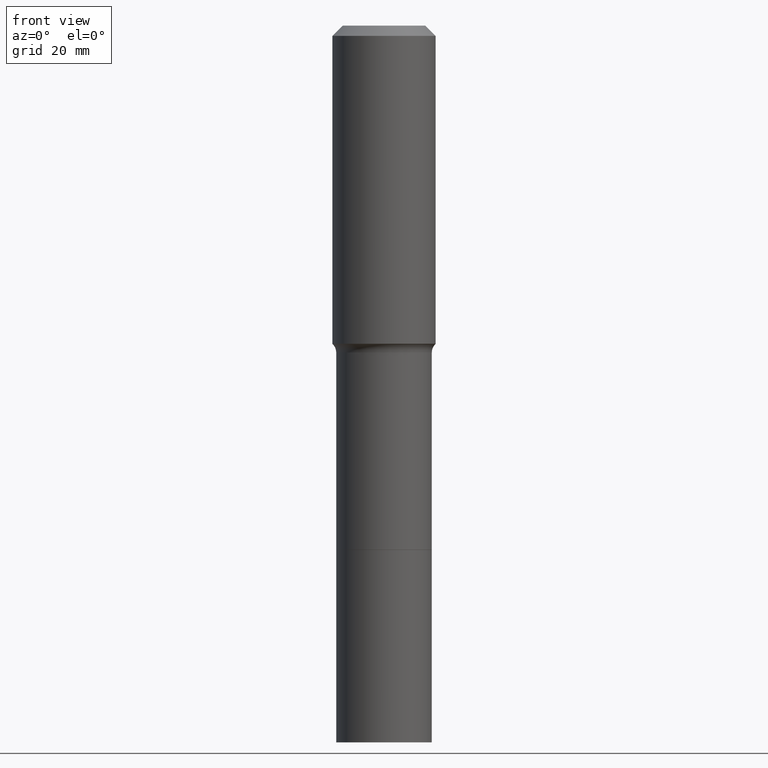
[diagram: clean part render]
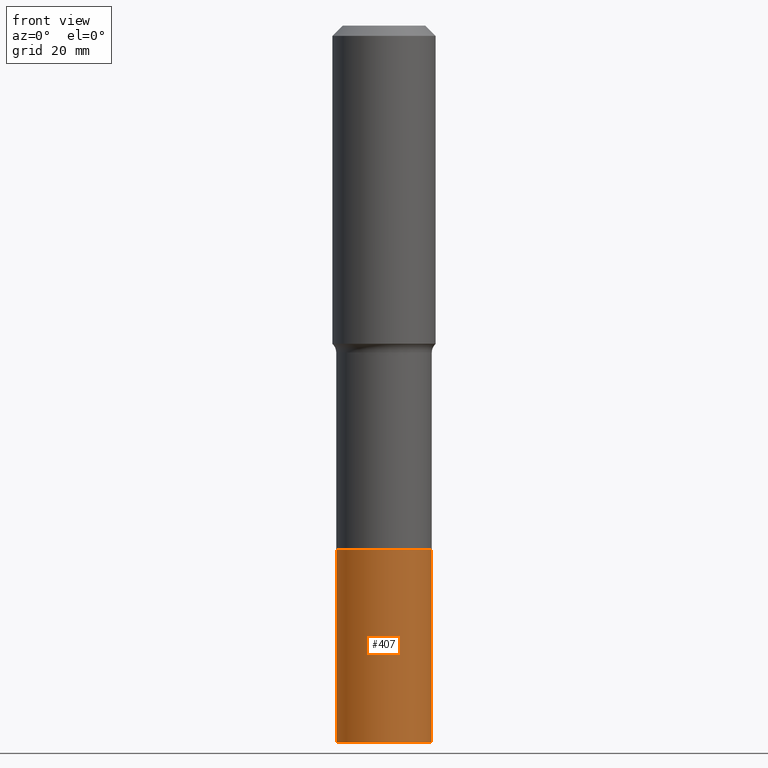
[diagram: same view with one face highlighted and labeled with its STEP entity id]
A machine part, front view. The second image highlights one B-rep face of the part: STEP entity #407.
In plain terms, the highlighted cylindrical surface (partial cylindrical patch) has radius 8.3337 mm, axis along (-0, 0, 1).
Its self-contained STEP definition (entity closure, byte-faithful):
#7 = ORIENTED_EDGE ( 'NONE', *, *, #251, .T. ) ;
#8 = CARTESIAN_POINT ( 'NONE',  ( -0.3281000000000000028, -1.254521297251398418E-14, -3.600299999999999834 ) ) ;
#25 = ORIENTED_EDGE ( 'NONE', *, *, #301, .T. ) ;
#33 = AXIS2_PLACEMENT_3D ( 'NONE', #348, #137, #235 ) ;
#39 = LINE ( 'NONE', #202, #241 ) ;
#67 = FACE_OUTER_BOUND ( 'NONE', #166, .T. ) ;
#79 = DIRECTION ( 'NONE',  ( -2.445468806185136877E-29, 3.491481338843145188E-15, 1.000000000000000000 ) ) ;
#112 = LINE ( 'NONE', #279, #399 ) ;
#119 = EDGE_CURVE ( 'NONE', #372, #177, #112, .T. ) ;
#134 = VERTEX_POINT ( 'NONE', #406 ) ;
#137 = DIRECTION ( 'NONE',  ( -2.445468806185136597E-29, 3.491481338843145583E-15, 1.000000000000000000 ) ) ;
#166 = EDGE_LOOP ( 'NONE', ( #480, #25, #7, #305 ) ) ;
#174 = CYLINDRICAL_SURFACE ( 'NONE', #197, 0.3281000000000001138 ) ;
#177 = VERTEX_POINT ( 'NONE', #8 ) ;
#197 = AXIS2_PLACEMENT_3D ( 'NONE', #230, #304, #424 ) ;
#198 = EDGE_CURVE ( 'NONE', #177, #248, #512, .T. ) ;
#202 = CARTESIAN_POINT ( 'NONE',  ( 0.3281000000000001138, -1.486149031878584127E-14, -3.600299999999999834 ) ) ;
#220 = DIRECTION ( 'NONE',  ( -2.445468806185136597E-29, 3.491481338843145583E-15, 1.000000000000000000 ) ) ;
#230 = CARTESIAN_POINT ( 'NONE',  ( 8.804421342908347653E-29, -1.257038026423697637E-14, -3.600299999999999834 ) ) ;
#235 = DIRECTION ( 'NONE',  ( 1.000000000000000000, -6.982962677686270655E-15, 0.000000000000000000 ) ) ;
#241 = VECTOR ( 'NONE', #79, 39.37007874015748143 ) ;
#248 = VERTEX_POINT ( 'NONE', #398 ) ;
#251 = EDGE_CURVE ( 'NONE', #134, #248, #39, .T. ) ;
#279 = CARTESIAN_POINT ( 'NONE',  ( -0.3281000000000001138, -1.023908954820808567E-14, -3.600299999999999834 ) ) ;
#285 = CIRCLE ( 'NONE', #392, 0.3281000000000002248 ) ;
#301 = EDGE_CURVE ( 'NONE', #372, #134, #285, .T. ) ;
#304 = DIRECTION ( 'NONE',  ( -2.445468806185136597E-29, 3.491481338843145583E-15, 1.000000000000000000 ) ) ;
#305 = ORIENTED_EDGE ( 'NONE', *, *, #198, .F. ) ;
#348 = CARTESIAN_POINT ( 'NONE',  ( 8.804421342908347653E-29, -1.257038026423697637E-14, -3.600299999999999834 ) ) ;
#354 = CARTESIAN_POINT ( 'NONE',  ( -0.3281000000000002248, -1.254521297251398260E-14, -4.921299999999999564 ) ) ;
#372 = VERTEX_POINT ( 'NONE', #354 ) ;
#392 = AXIS2_PLACEMENT_3D ( 'NONE', #458, #220, #506 ) ;
#398 = CARTESIAN_POINT ( 'NONE',  ( 0.3281000000000000028, -1.486149031878584127E-14, -3.600299999999999834 ) ) ;
#399 = VECTOR ( 'NONE', #438, 39.37007874015748143 ) ;
#406 = CARTESIAN_POINT ( 'NONE',  ( 0.3281000000000002248, -1.947373716739763829E-14, -4.921299999999999564 ) ) ;
#407 = ADVANCED_FACE ( 'NONE', ( #67 ), #174, .T. ) ;
#424 = DIRECTION ( 'NONE',  ( 1.000000000000000000, -6.982962677686268288E-15, 0.000000000000000000 ) ) ;
#438 = DIRECTION ( 'NONE',  ( -2.445468806185136877E-29, 3.491481338843145188E-15, 1.000000000000000000 ) ) ;
#458 = CARTESIAN_POINT ( 'NONE',  ( 1.203488563587891146E-28, -1.718262711284877024E-14, -4.921299999999999564 ) ) ;
#480 = ORIENTED_EDGE ( 'NONE', *, *, #119, .F. ) ;
#506 = DIRECTION ( 'NONE',  ( 1.000000000000000000, -6.982962677686270655E-15, 0.000000000000000000 ) ) ;
#512 = CIRCLE ( 'NONE', #33, 0.3281000000000000028 ) ;